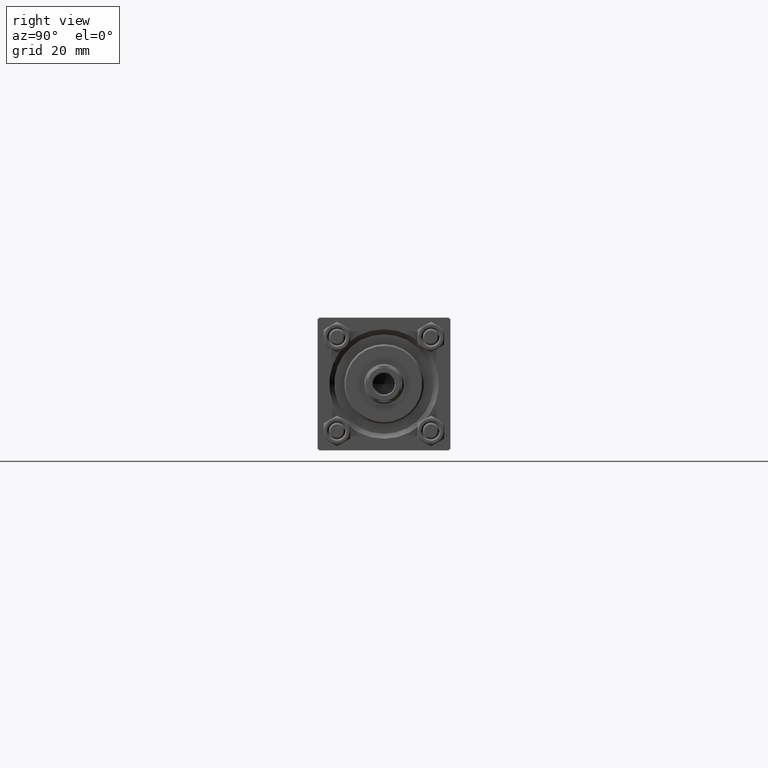
[diagram: clean part render]
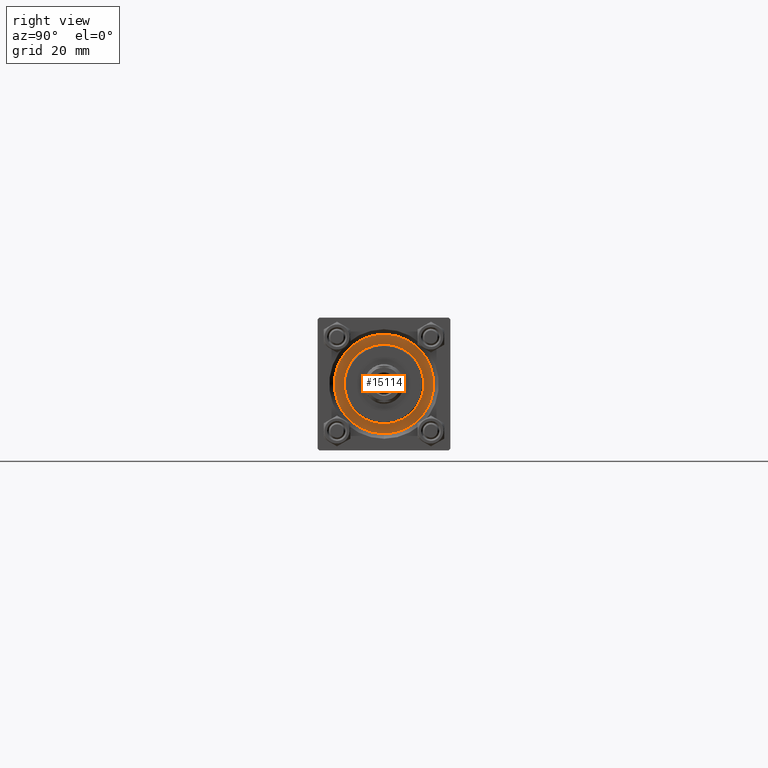
[diagram: same view with one face highlighted and labeled with its STEP entity id]
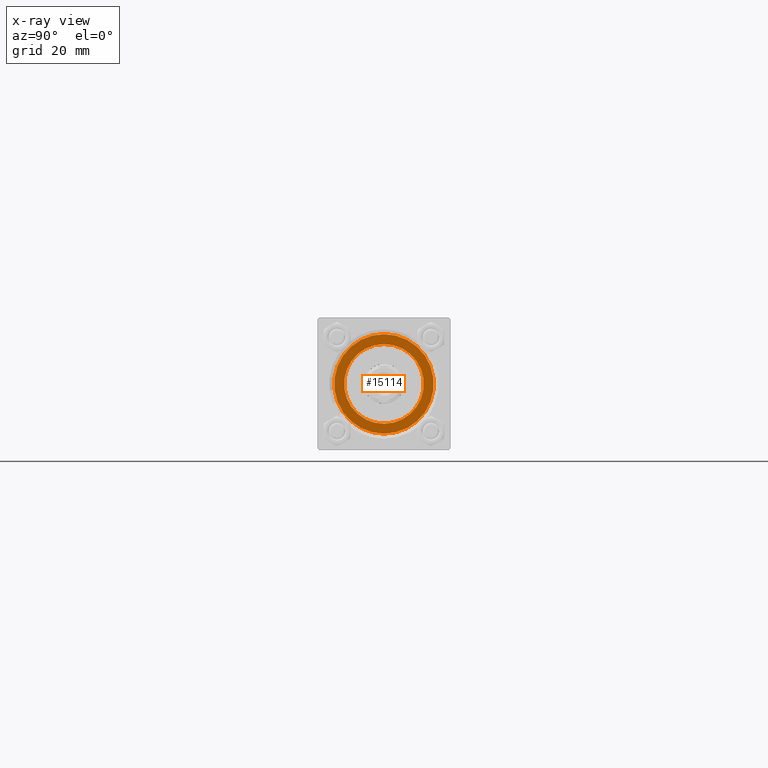
[diagram: x-ray of the same camera — body ghosted, the highlighted face saturated]
A machine part, right view. The second image highlights one B-rep face of the part: STEP entity #15114.
The next image is the same camera in x-ray: the body ghosted, the highlighted face saturated — about 0% of this face is hidden behind the body in this view.
In plain terms, the highlighted planar face has unit normal (1, 0, -0).
Its self-contained STEP definition (entity closure, byte-faithful):
#1655 = AXIS2_PLACEMENT_3D ( 'NONE', #36972, #16929, #39833 ) ;
#2058 = EDGE_CURVE ( 'NONE', #32410, #44605, #9298, .T. ) ;
#2226 = DIRECTION ( 'NONE',  ( 1.000000000000000000, 0.000000000000000000, 0.000000000000000000 ) ) ;
#3202 = CIRCLE ( 'NONE', #45819, 15.00000000000000000 ) ;
#5661 = CIRCLE ( 'NONE', #1655, 12.00000000000000178 ) ;
#5959 = EDGE_LOOP ( 'NONE', ( #13385, #17578 ) ) ;
#6754 = DIRECTION ( 'NONE',  ( 0.000000000000000000, 0.000000000000000000, 1.000000000000000000 ) ) ;
#9298 = CIRCLE ( 'NONE', #30993, 15.00000000000000000 ) ;
#10524 = FACE_BOUND ( 'NONE', #15757, .T. ) ;
#10659 = DIRECTION ( 'NONE',  ( 1.000000000000000000, 0.000000000000000000, 0.000000000000000000 ) ) ;
#10907 = CARTESIAN_POINT ( 'NONE',  ( 0.000000000000000000, 0.000000000000000000, 28.69999999999999929 ) ) ;
#12623 = EDGE_CURVE ( 'NONE', #44605, #32410, #3202, .T. ) ;
#12735 = CARTESIAN_POINT ( 'NONE',  ( 15.00000000000000000, 1.836970198721029589E-15, 28.69999999999999929 ) ) ;
#13385 = ORIENTED_EDGE ( 'NONE', *, *, #2058, .T. ) ;
#13546 = AXIS2_PLACEMENT_3D ( 'NONE', #26632, #6754, #33921 ) ;
#14342 = ORIENTED_EDGE ( 'NONE', *, *, #18132, .F. ) ;
#15114 = ADVANCED_FACE ( 'NONE', ( #10524, #41222 ), #37438, .T. ) ;
#15757 = EDGE_LOOP ( 'NONE', ( #48365, #14342 ) ) ;
#16929 = DIRECTION ( 'NONE',  ( 0.000000000000000000, 0.000000000000000000, 1.000000000000000000 ) ) ;
#17069 = CIRCLE ( 'NONE', #37988, 12.00000000000000178 ) ;
#17578 = ORIENTED_EDGE ( 'NONE', *, *, #12623, .T. ) ;
#18132 = EDGE_CURVE ( 'NONE', #45185, #42519, #5661, .T. ) ;
#19830 = CARTESIAN_POINT ( 'NONE',  ( 0.000000000000000000, 0.000000000000000000, 28.69999999999999929 ) ) ;
#23990 = CARTESIAN_POINT ( 'NONE',  ( -15.00000000000000000, 0.000000000000000000, 28.69999999999999929 ) ) ;
#26632 = CARTESIAN_POINT ( 'NONE',  ( 0.000000000000000000, 0.000000000000000000, 28.69999999999999929 ) ) ;
#28752 = CARTESIAN_POINT ( 'NONE',  ( -12.00000000000000178, 0.000000000000000000, 28.69999999999999929 ) ) ;
#30993 = AXIS2_PLACEMENT_3D ( 'NONE', #19830, #34176, #46774 ) ;
#32410 = VERTEX_POINT ( 'NONE', #23990 ) ;
#32904 = CARTESIAN_POINT ( 'NONE',  ( 0.000000000000000000, 0.000000000000000000, 28.69999999999999929 ) ) ;
#33921 = DIRECTION ( 'NONE',  ( 1.000000000000000000, 0.000000000000000000, -0.000000000000000000 ) ) ;
#34176 = DIRECTION ( 'NONE',  ( 0.000000000000000000, 0.000000000000000000, 1.000000000000000000 ) ) ;
#34772 = CARTESIAN_POINT ( 'NONE',  ( 12.00000000000000178, 1.469576158976824144E-15, 28.69999999999999929 ) ) ;
#36972 = CARTESIAN_POINT ( 'NONE',  ( 0.000000000000000000, 0.000000000000000000, 28.69999999999999929 ) ) ;
#37438 = PLANE ( 'NONE',  #13546 ) ;
#37988 = AXIS2_PLACEMENT_3D ( 'NONE', #10907, #49199, #10659 ) ;
#38126 = EDGE_CURVE ( 'NONE', #42519, #45185, #17069, .T. ) ;
#39833 = DIRECTION ( 'NONE',  ( 1.000000000000000000, 0.000000000000000000, 0.000000000000000000 ) ) ;
#41222 = FACE_OUTER_BOUND ( 'NONE', #5959, .T. ) ;
#42519 = VERTEX_POINT ( 'NONE', #28752 ) ;
#44011 = DIRECTION ( 'NONE',  ( 0.000000000000000000, 0.000000000000000000, 1.000000000000000000 ) ) ;
#44605 = VERTEX_POINT ( 'NONE', #12735 ) ;
#45185 = VERTEX_POINT ( 'NONE', #34772 ) ;
#45819 = AXIS2_PLACEMENT_3D ( 'NONE', #32904, #44011, #2226 ) ;
#46774 = DIRECTION ( 'NONE',  ( 1.000000000000000000, 0.000000000000000000, 0.000000000000000000 ) ) ;
#48365 = ORIENTED_EDGE ( 'NONE', *, *, #38126, .F. ) ;
#49199 = DIRECTION ( 'NONE',  ( 0.000000000000000000, 0.000000000000000000, 1.000000000000000000 ) ) ;